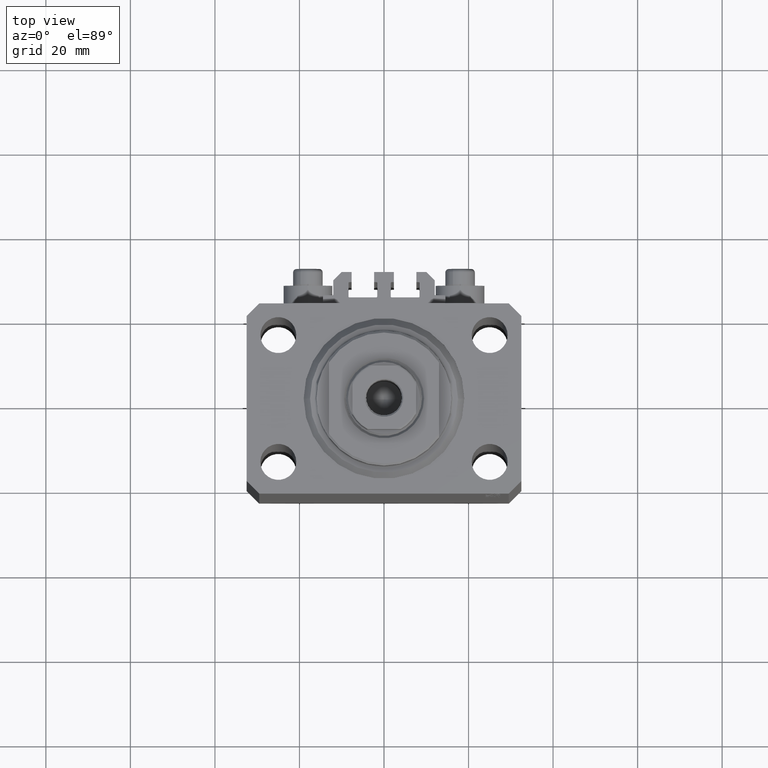
[diagram: clean part render]
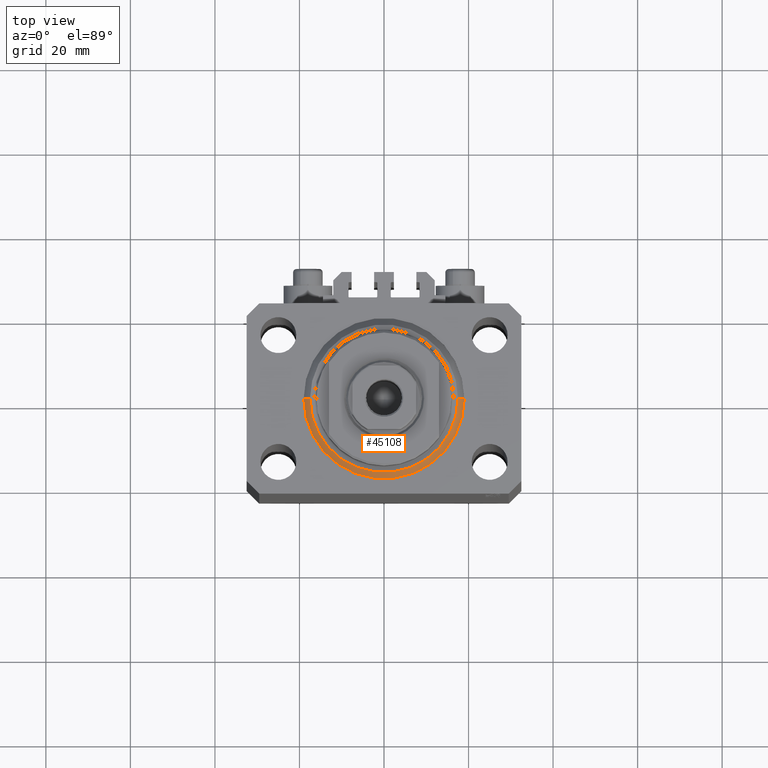
[diagram: same view with one face highlighted and labeled with its STEP entity id]
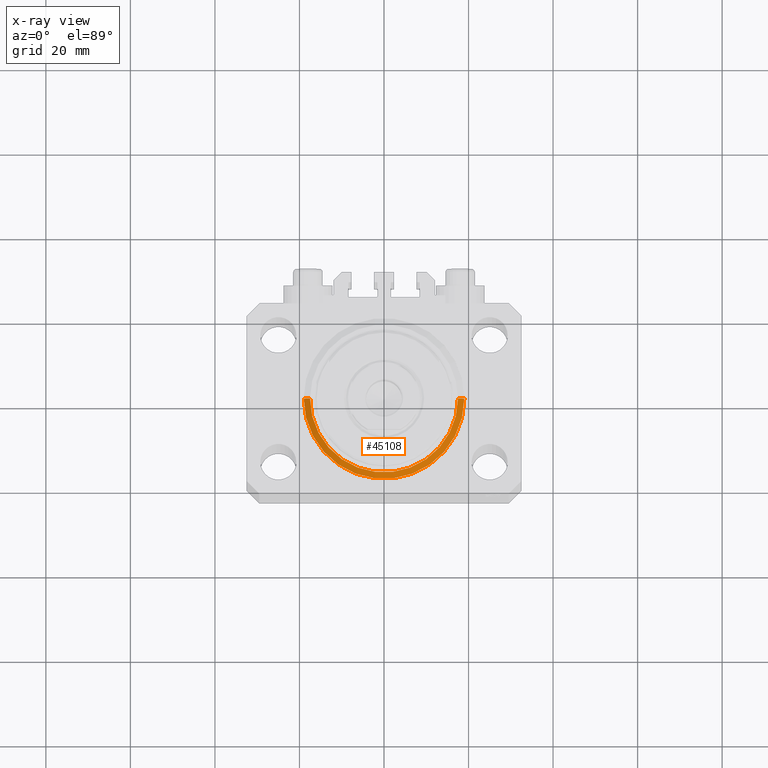
[diagram: x-ray of the same camera — body ghosted, the highlighted face saturated]
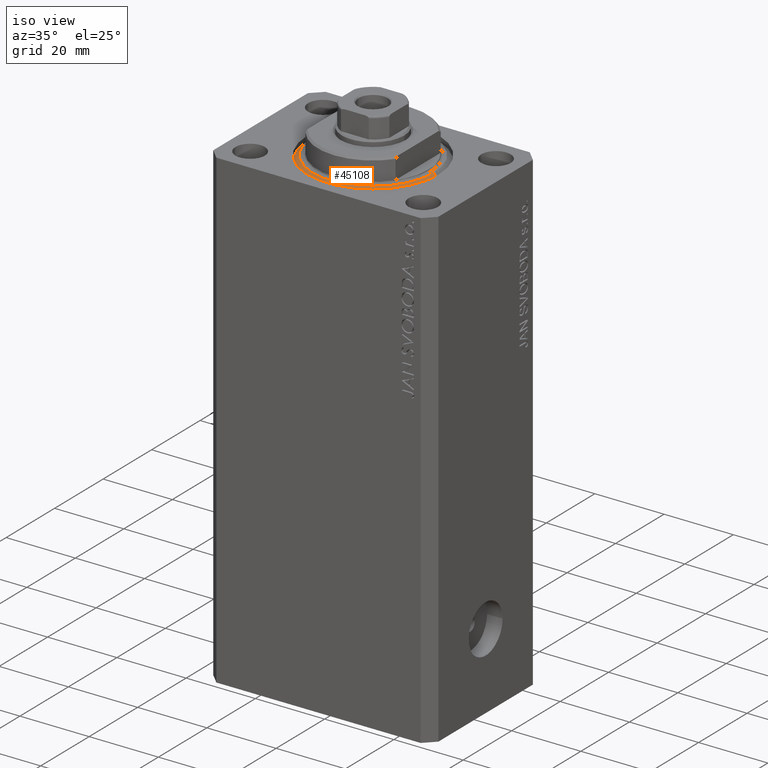
[diagram: same view with one face highlighted and labeled with its STEP entity id]
A machine part, top view. The second image highlights one B-rep face of the part: STEP entity #45108.
The next image is the same camera in x-ray: the body ghosted, the highlighted face saturated — about 0% of this face is hidden behind the body in this view.
A second angle (iso view) of the same face is appended — the face is thin or edge-on in the first view.
In plain terms, the highlighted conical surface has half-angle 45 deg.
Its self-contained STEP definition (entity closure, byte-faithful):
#1382 = EDGE_CURVE ( 'NONE', #12556, #31548, #22868, .T. ) ;
#2206 = EDGE_CURVE ( 'NONE', #12556, #39631, #30562, .T. ) ;
#4875 = ORIENTED_EDGE ( 'NONE', *, *, #23391, .F. ) ;
#7134 = ORIENTED_EDGE ( 'NONE', *, *, #31341, .F. ) ;
#8756 = EDGE_LOOP ( 'NONE', ( #4875, #21699, #31305, #7134 ) ) ;
#9214 = DIRECTION ( 'NONE',  ( -0.000000000000000000, -0.000000000000000000, 1.000000000000000000 ) ) ;
#9764 = DIRECTION ( 'NONE',  ( -0.7071067811865483499, 8.659560562354943952E-17, 0.7071067811865467956 ) ) ;
#10826 = VERTEX_POINT ( 'NONE', #34630 ) ;
#12556 = VERTEX_POINT ( 'NONE', #24758 ) ;
#13377 = CIRCLE ( 'NONE', #28710, 19.00000000000000000 ) ;
#14590 = DIRECTION ( 'NONE',  ( 1.000000000000000000, 0.000000000000000000, 0.000000000000000000 ) ) ;
#16607 = VECTOR ( 'NONE', #36535, 1000.000000000000000 ) ;
#16911 = CARTESIAN_POINT ( 'NONE',  ( 0.000000000000000000, 0.000000000000000000, 1.500000000000004885 ) ) ;
#17846 = VECTOR ( 'NONE', #9764, 1000.000000000000000 ) ;
#18682 = AXIS2_PLACEMENT_3D ( 'NONE', #31713, #9214, #46317 ) ;
#21699 = ORIENTED_EDGE ( 'NONE', *, *, #2206, .F. ) ;
#21762 = CARTESIAN_POINT ( 'NONE',  ( 0.000000000000000000, 0.000000000000000000, 0.000000000000000000 ) ) ;
#22868 = LINE ( 'NONE', #37478, #16607 ) ;
#23391 = EDGE_CURVE ( 'NONE', #39631, #10826, #24875, .T. ) ;
#24758 = CARTESIAN_POINT ( 'NONE',  ( 17.49999999999999289, 0.000000000000000000, 0.000000000000000000 ) ) ;
#24875 = LINE ( 'NONE', #39477, #17846 ) ;
#27693 = DIRECTION ( 'NONE',  ( 1.000000000000000000, 0.000000000000000000, 0.000000000000000000 ) ) ;
#28710 = AXIS2_PLACEMENT_3D ( 'NONE', #16911, #41574, #27693 ) ;
#30562 = CIRCLE ( 'NONE', #42774, 17.49999999999999289 ) ;
#31305 = ORIENTED_EDGE ( 'NONE', *, *, #1382, .T. ) ;
#31341 = EDGE_CURVE ( 'NONE', #10826, #31548, #13377, .T. ) ;
#31548 = VERTEX_POINT ( 'NONE', #40114 ) ;
#31713 = CARTESIAN_POINT ( 'NONE',  ( 0.000000000000000000, 0.000000000000000000, 1.500000000000004885 ) ) ;
#34630 = CARTESIAN_POINT ( 'NONE',  ( -19.00000000000000000, 0.000000000000000000, 1.500000000000004885 ) ) ;
#35297 = FACE_OUTER_BOUND ( 'NONE', #8756, .T. ) ;
#36535 = DIRECTION ( 'NONE',  ( 0.7071067811865483499, 0.000000000000000000, 0.7071067811865467956 ) ) ;
#37478 = CARTESIAN_POINT ( 'NONE',  ( 19.00000000000000000, 0.000000000000000000, 1.500000000000004885 ) ) ;
#39477 = CARTESIAN_POINT ( 'NONE',  ( -19.00000000000000000, 2.326828918379970970E-15, 1.500000000000004885 ) ) ;
#39631 = VERTEX_POINT ( 'NONE', #41625 ) ;
#39968 = DIRECTION ( 'NONE',  ( -0.000000000000000000, -0.000000000000000000, -1.000000000000000000 ) ) ;
#40114 = CARTESIAN_POINT ( 'NONE',  ( 19.00000000000000000, 2.326828918379970970E-15, 1.500000000000004885 ) ) ;
#41574 = DIRECTION ( 'NONE',  ( -0.000000000000000000, -0.000000000000000000, 1.000000000000000000 ) ) ;
#41625 = CARTESIAN_POINT ( 'NONE',  ( -17.49999999999999289, 2.234980408443919215E-15, 0.000000000000000000 ) ) ;
#42774 = AXIS2_PLACEMENT_3D ( 'NONE', #21762, #39968, #14590 ) ;
#43897 = CONICAL_SURFACE ( 'NONE', #18682, 19.00000000000000000, 0.7853981633974492782 ) ;
#45108 = ADVANCED_FACE ( 'NONE', ( #35297 ), #43897, .T. ) ;
#46317 = DIRECTION ( 'NONE',  ( 1.000000000000000000, 0.000000000000000000, 0.000000000000000000 ) ) ;